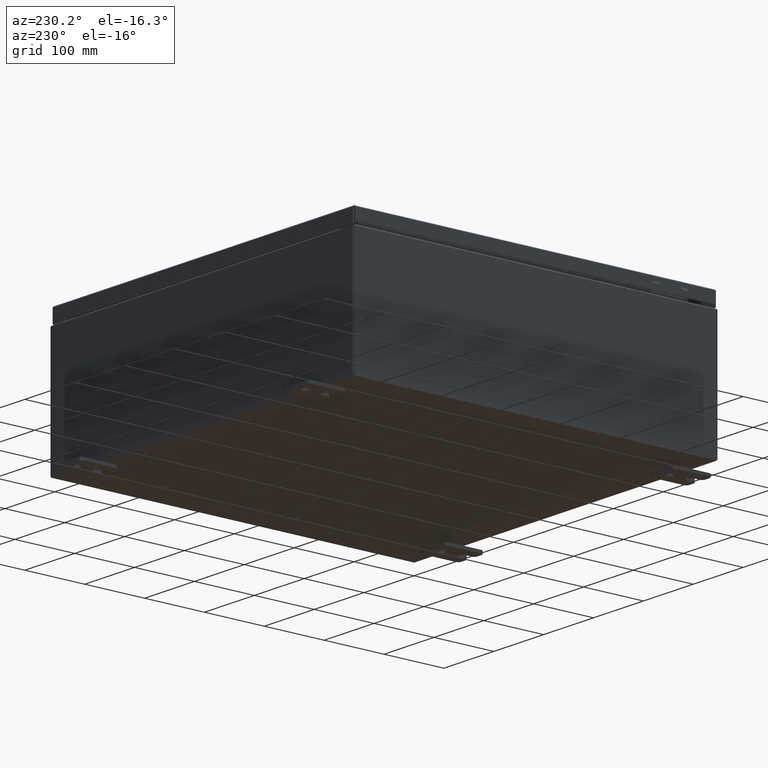
[diagram: clean part render]
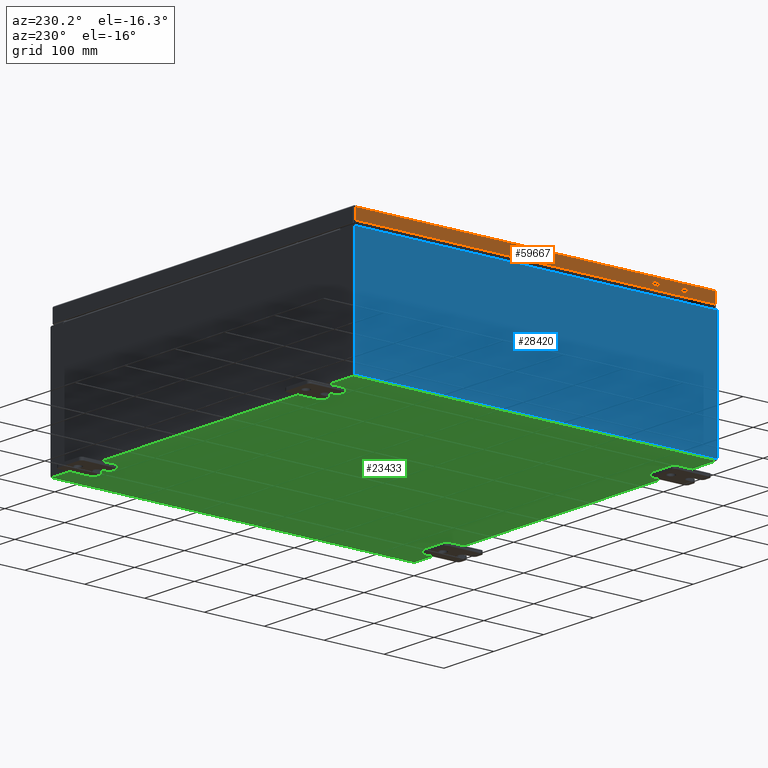
[diagram: same view with three faces highlighted in distinct colors, each labeled with its STEP entity id]
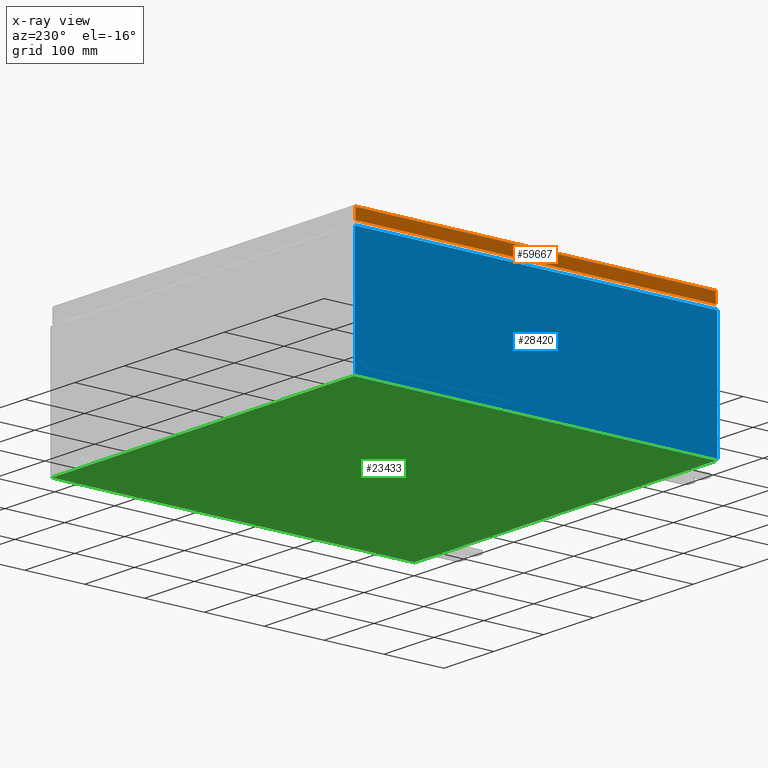
[diagram: x-ray of the same camera — body ghosted, the three highlighted faces saturated]
A machine part, auxiliary view with three faces highlighted in distinct colors.
The next image is the same camera in x-ray (body ghosted, the three faces saturated) — at least one of them is partly hidden behind the body in this view.
Their STEP definitions:

[orange] entity #59667 — the highlighted planar face has unit normal (1, 0, -0).
#1515 = VERTEX_POINT ( 'NONE', #58275 ) ;
#2899 = DIRECTION ( 'NONE',  ( 9.153836209136808200E-017, -1.000000000000000000, -9.153836209136826700E-017 ) ) ;
#2984 = VECTOR ( 'NONE', #60888, 39.37007874015748100 ) ;
#3600 = CARTESIAN_POINT ( 'NONE',  ( -11.93749999999999800, 11.84865786437626800, 1.192193859543173000E-013 ) ) ;
#4361 = ORIENTED_EDGE ( 'NONE', *, *, #13373, .F. ) ;
#4894 = FACE_OUTER_BOUND ( 'NONE', #48140, .T. ) ;
#8050 = EDGE_CURVE ( 'NONE', #1515, #22334, #16860, .T. ) ;
#8434 = EDGE_CURVE ( 'NONE', #22334, #49578, #40628, .T. ) ;
#8926 = EDGE_CURVE ( 'NONE', #1515, #17683, #52877, .T. ) ;
#10093 = ORIENTED_EDGE ( 'NONE', *, *, #8050, .F. ) ;
#13373 = EDGE_CURVE ( 'NONE', #49578, #17683, #61435, .T. ) ;
#16077 = DIRECTION ( 'NONE',  ( 1.000000000000000000, 9.153836209136835400E-017, -3.034122441942816500E-015 ) ) ;
#16860 = LINE ( 'NONE', #56724, #28401 ) ;
#17558 = CARTESIAN_POINT ( 'NONE',  ( -11.93750000000000000, -11.93750000000000000, -0.7949999999999997100 ) ) ;
#17683 = VERTEX_POINT ( 'NONE', #30619 ) ;
#18446 = DIRECTION ( 'NONE',  ( -3.034122441942817300E-015, 6.982962677686265900E-015, -1.000000000000000000 ) ) ;
#22334 = VERTEX_POINT ( 'NONE', #48538 ) ;
#22372 = VECTOR ( 'NONE', #22511, 39.37007874015748100 ) ;
#22511 = DIRECTION ( 'NONE',  ( -9.153836209136798400E-017, 1.000000000000000000, 1.201441002449204700E-016 ) ) ;
#26649 = CARTESIAN_POINT ( 'NONE',  ( -11.93749999999999800, -11.84865786437626900, -0.07469999999999976700 ) ) ;
#28401 = VECTOR ( 'NONE', #2899, 39.37007874015748100 ) ;
#30619 = CARTESIAN_POINT ( 'NONE',  ( -11.93750000000000000, 11.84865786437627300, -0.7949999999999968200 ) ) ;
#38398 = CARTESIAN_POINT ( 'NONE',  ( -11.93750000000000000, -11.84865786437626600, -0.7949999999999996000 ) ) ;
#39816 = VECTOR ( 'NONE', #18446, 39.37007874015748100 ) ;
#40628 = LINE ( 'NONE', #26649, #2984 ) ;
#43019 = ORIENTED_EDGE ( 'NONE', *, *, #8926, .T. ) ;
#45424 = CARTESIAN_POINT ( 'NONE',  ( -11.93749999999999800, -1.092739197465709600E-015, 3.648065030670394700E-014 ) ) ;
#48140 = EDGE_LOOP ( 'NONE', ( #10093, #43019, #4361, #54405 ) ) ;
#48538 = CARTESIAN_POINT ( 'NONE',  ( -11.93749999999999800, -11.84865786437626800, -0.08769999999999897300 ) ) ;
#49578 = VERTEX_POINT ( 'NONE', #38398 ) ;
#50170 = PLANE ( 'NONE',  #62658 ) ;
#50382 = DIRECTION ( 'NONE',  ( -3.034122441942816500E-015, 0.0000000000000000000, -1.000000000000000000 ) ) ;
#52877 = LINE ( 'NONE', #3600, #39816 ) ;
#54405 = ORIENTED_EDGE ( 'NONE', *, *, #8434, .F. ) ;
#56724 = CARTESIAN_POINT ( 'NONE',  ( -11.93749999999999800, -11.93750000000000000, -0.08770000000000004200 ) ) ;
#58275 = CARTESIAN_POINT ( 'NONE',  ( -11.93750000000000000, 11.84865786437626800, -0.08769999999999786300 ) ) ;
#59667 = ADVANCED_FACE ( 'NONE', ( #4894 ), #50170, .F. ) ;
#60888 = DIRECTION ( 'NONE',  ( -3.034122441942817300E-015, 6.982962677686265900E-015, -1.000000000000000000 ) ) ;
#61435 = LINE ( 'NONE', #17558, #22372 ) ;
#62658 = AXIS2_PLACEMENT_3D ( 'NONE', #45424, #16077, #50382 ) ;

[blue] entity #28420 — the highlighted planar face has unit normal (1, 0, 0).
#2002 = VECTOR ( 'NONE', #19775, 39.37007874015748100 ) ;
#3155 = FACE_OUTER_BOUND ( 'NONE', #62319, .T. ) ;
#4213 = VECTOR ( 'NONE', #4440, 39.37007874015748100 ) ;
#4440 = DIRECTION ( 'NONE',  ( -3.584876173029202900E-015, 0.0000000000000000000, 1.000000000000000000 ) ) ;
#8328 = CARTESIAN_POINT ( 'NONE',  ( -12.00000000000003200, -11.92530000000000400, 7.837599999999999200 ) ) ;
#10127 = CARTESIAN_POINT ( 'NONE',  ( -12.00000000000000400, 0.0000000000000000000, -4.327932773236202500E-014 ) ) ;
#15083 = LINE ( 'NONE', #29424, #2002 ) ;
#18884 = CARTESIAN_POINT ( 'NONE',  ( -12.00000000000000400, -11.92530000000000400, -4.327932773236202500E-014 ) ) ;
#18995 = EDGE_CURVE ( 'NONE', #26953, #46929, #15083, .T. ) ;
#19775 = DIRECTION ( 'NONE',  ( -0.0000000000000000000, 1.000000000000000000, -0.0000000000000000000 ) ) ;
#20033 = PLANE ( 'NONE',  #52402 ) ;
#23284 = CARTESIAN_POINT ( 'NONE',  ( -12.00000000000000400, 11.92529999999999800, -4.327932773236202500E-014 ) ) ;
#24955 = DIRECTION ( 'NONE',  ( 3.584876173029202900E-015, 0.0000000000000000000, -1.000000000000000000 ) ) ;
#25861 = EDGE_CURVE ( 'NONE', #60504, #46929, #31747, .T. ) ;
#26953 = VERTEX_POINT ( 'NONE', #56987 ) ;
#28420 = ADVANCED_FACE ( 'NONE', ( #3155 ), #20033, .F. ) ;
#29424 = CARTESIAN_POINT ( 'NONE',  ( -12.00000000000000400, 11.92529999999999800, 0.01299999999999984700 ) ) ;
#31747 = LINE ( 'NONE', #23284, #43229 ) ;
#33434 = LINE ( 'NONE', #18884, #4213 ) ;
#34696 = EDGE_CURVE ( 'NONE', #53098, #60504, #48175, .T. ) ;
#38130 = ORIENTED_EDGE ( 'NONE', *, *, #25861, .T. ) ;
#40784 = ORIENTED_EDGE ( 'NONE', *, *, #58225, .T. ) ;
#42532 = CARTESIAN_POINT ( 'NONE',  ( -12.00000000000003200, -11.92530000000000000, 7.837599999999999200 ) ) ;
#42960 = DIRECTION ( 'NONE',  ( 3.584876173029202900E-015, 0.0000000000000000000, -1.000000000000000000 ) ) ;
#43229 = VECTOR ( 'NONE', #42960, 39.37007874015748100 ) ;
#44892 = ORIENTED_EDGE ( 'NONE', *, *, #18995, .F. ) ;
#46929 = VERTEX_POINT ( 'NONE', #59080 ) ;
#48175 = LINE ( 'NONE', #8328, #51261 ) ;
#51261 = VECTOR ( 'NONE', #51450, 39.37007874015748100 ) ;
#51450 = DIRECTION ( 'NONE',  ( 0.0000000000000000000, 1.000000000000000000, 0.0000000000000000000 ) ) ;
#52402 = AXIS2_PLACEMENT_3D ( 'NONE', #10127, #54306, #24955 ) ;
#53098 = VERTEX_POINT ( 'NONE', #42532 ) ;
#54306 = DIRECTION ( 'NONE',  ( 1.000000000000000000, 0.0000000000000000000, 3.584876173029202900E-015 ) ) ;
#56987 = CARTESIAN_POINT ( 'NONE',  ( -12.00000000000000400, -11.92530000000000000, 0.01299999999999984700 ) ) ;
#58225 = EDGE_CURVE ( 'NONE', #26953, #53098, #33434, .T. ) ;
#59080 = CARTESIAN_POINT ( 'NONE',  ( -12.00000000000000400, 11.92529999999999800, 0.01299999999999983600 ) ) ;
#60504 = VERTEX_POINT ( 'NONE', #62753 ) ;
#61598 = ORIENTED_EDGE ( 'NONE', *, *, #34696, .T. ) ;
#62319 = EDGE_LOOP ( 'NONE', ( #61598, #38130, #44892, #40784 ) ) ;
#62753 = CARTESIAN_POINT ( 'NONE',  ( -12.00000000000003200, 11.92529999999999800, 7.837599999999999200 ) ) ;

[green] entity #23433 — the highlighted planar face has unit normal (0, 0, -1).
#38 = CARTESIAN_POINT ( 'NONE',  ( -11.91230000000000400, 11.92529999999999800, -0.07470000000000000300 ) ) ;
#429 = EDGE_CURVE ( 'NONE', #32076, #22387, #3424, .T. ) ;
#1371 = VECTOR ( 'NONE', #51323, 39.37007874015748100 ) ;
#3424 = LINE ( 'NONE', #22035, #16498 ) ;
#6267 = CARTESIAN_POINT ( 'NONE',  ( 11.91229999999998900, -11.92530000000000400, -0.07470000000000000300 ) ) ;
#8153 = VECTOR ( 'NONE', #42898, 39.37007874015748100 ) ;
#8928 = ORIENTED_EDGE ( 'NONE', *, *, #18799, .T. ) ;
#12376 = DIRECTION ( 'NONE',  ( -1.000000000000000000, 0.0000000000000000000, -0.0000000000000000000 ) ) ;
#16331 = VERTEX_POINT ( 'NONE', #6267 ) ;
#16498 = VECTOR ( 'NONE', #20000, 39.37007874015748100 ) ;
#18382 = CARTESIAN_POINT ( 'NONE',  ( -11.91230000000000400, -11.92530000000000000, -0.07469999999999994700 ) ) ;
#18799 = EDGE_CURVE ( 'NONE', #32076, #16331, #21271, .T. ) ;
#20000 = DIRECTION ( 'NONE',  ( -1.000000000000000000, -0.0000000000000000000, -0.0000000000000000000 ) ) ;
#21271 = LINE ( 'NONE', #47864, #8153 ) ;
#21781 = CARTESIAN_POINT ( 'NONE',  ( -12.00000000000000400, -11.92530000000000400, -0.07470000000000000300 ) ) ;
#22035 = CARTESIAN_POINT ( 'NONE',  ( -12.00000000000000400, 11.92529999999999800, -0.07470000000000000300 ) ) ;
#22387 = VERTEX_POINT ( 'NONE', #38 ) ;
#23433 = ADVANCED_FACE ( 'NONE', ( #57830 ), #26990, .T. ) ;
#26990 = PLANE ( 'NONE',  #34512 ) ;
#32076 = VERTEX_POINT ( 'NONE', #45497 ) ;
#32496 = DIRECTION ( 'NONE',  ( -0.0000000000000000000, 1.000000000000000000, -0.0000000000000000000 ) ) ;
#32930 = CARTESIAN_POINT ( 'NONE',  ( -11.91230000000000400, -11.92530000000000400, -0.07469999999999994700 ) ) ;
#34512 = AXIS2_PLACEMENT_3D ( 'NONE', #61229, #41743, #12376 ) ;
#35855 = ORIENTED_EDGE ( 'NONE', *, *, #44570, .T. ) ;
#40557 = LINE ( 'NONE', #21781, #1371 ) ;
#41743 = DIRECTION ( 'NONE',  ( 0.0000000000000000000, 0.0000000000000000000, -1.000000000000000000 ) ) ;
#42898 = DIRECTION ( 'NONE',  ( -0.0000000000000000000, -1.000000000000000000, -0.0000000000000000000 ) ) ;
#44570 = EDGE_CURVE ( 'NONE', #48805, #22387, #54371, .T. ) ;
#45497 = CARTESIAN_POINT ( 'NONE',  ( 11.91229999999999800, 11.92529999999999600, -0.07469999999999994700 ) ) ;
#46592 = ORIENTED_EDGE ( 'NONE', *, *, #54374, .F. ) ;
#47864 = CARTESIAN_POINT ( 'NONE',  ( 11.91229999999999800, 11.92529999999999800, -0.07469999999999994700 ) ) ;
#48805 = VERTEX_POINT ( 'NONE', #18382 ) ;
#51323 = DIRECTION ( 'NONE',  ( 1.000000000000000000, 0.0000000000000000000, 0.0000000000000000000 ) ) ;
#52857 = VECTOR ( 'NONE', #32496, 39.37007874015748100 ) ;
#54371 = LINE ( 'NONE', #32930, #52857 ) ;
#54374 = EDGE_CURVE ( 'NONE', #48805, #16331, #40557, .T. ) ;
#57830 = FACE_OUTER_BOUND ( 'NONE', #63249, .T. ) ;
#58818 = ORIENTED_EDGE ( 'NONE', *, *, #429, .F. ) ;
#61229 = CARTESIAN_POINT ( 'NONE',  ( 0.0000000000000000000, 0.0000000000000000000, -0.07470000000000000300 ) ) ;
#63249 = EDGE_LOOP ( 'NONE', ( #46592, #35855, #58818, #8928 ) ) ;